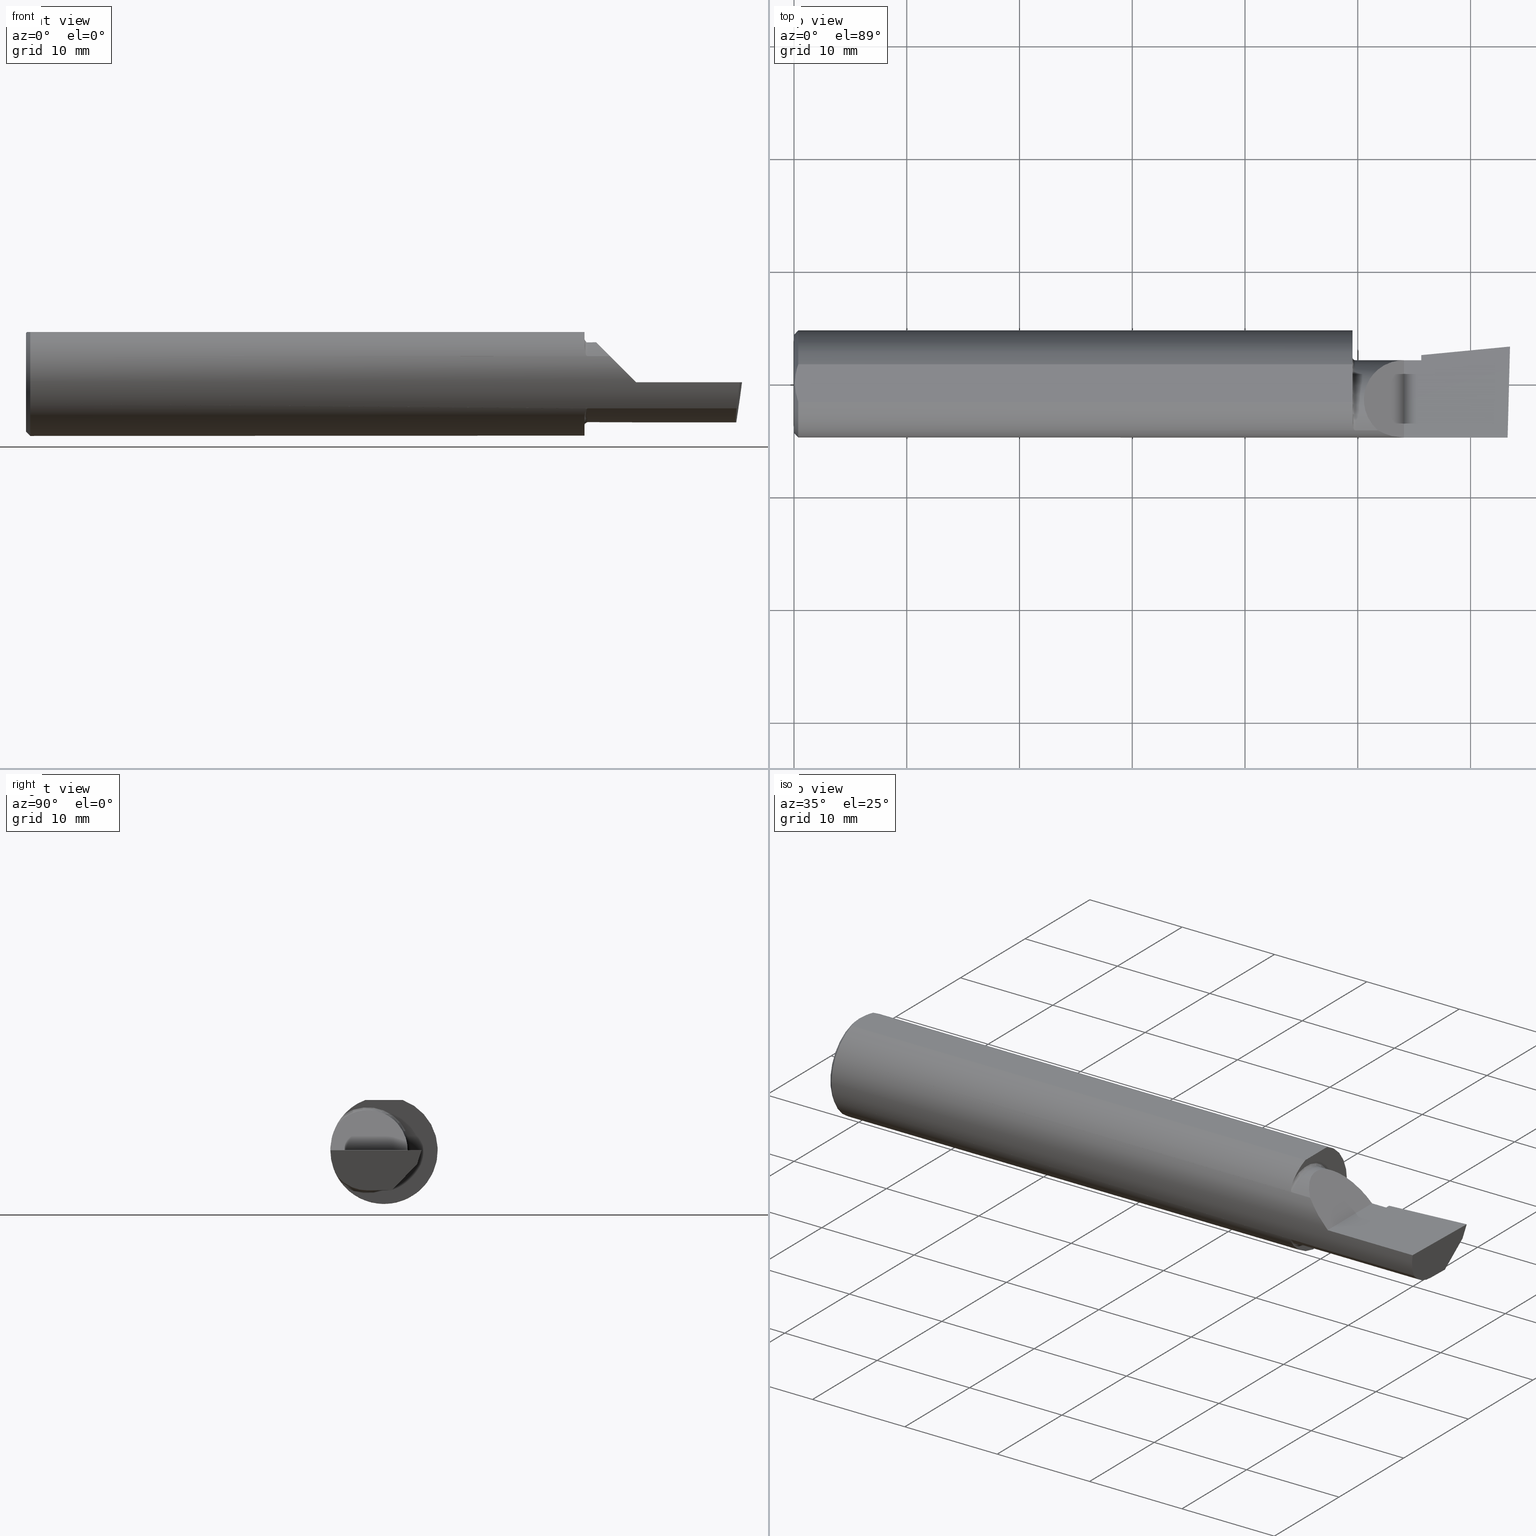
[diagram: canonical four-view strip — front | top / right | iso, engineering-drawing reading convention]
A machine part, canonical four-view strip (front | top / right | iso — engineering-drawing reading convention). The complete STEP part file that produces these views, byte-faithful:
ISO-10303-21;
HEADER;
FILE_DESCRIPTION (( 'STEP AP214' ),
    '1' );
FILE_NAME ('B320500.STEP',
    '2020-05-07T19:08:26',
    ( '' ),
    ( '' ),
    'SwSTEP 2.0',
    'SolidWorks 2018',
    '' );
FILE_SCHEMA (( 'AUTOMOTIVE_DESIGN' ));
ENDSEC;

DATA;
#1 = DIRECTION ( 'NONE',  ( -1.000000000000000000, 5.691349986800549142E-18, -0.0000000000000000000 ) ) ;
#2 = DIRECTION ( 'NONE',  ( 0.0000000000000000000, -1.000000000000000000, 2.664535259100375303E-15 ) ) ;
#3 = DIRECTION ( 'NONE',  ( -0.9953961983671800740, -0.09584575252021032554, -1.093478026937437971E-17 ) ) ;
#4 = EDGE_CURVE ( 'NONE', #303, #115, #137, .T. ) ;
#5 = CARTESIAN_POINT ( 'NONE',  ( 0.01125230581755086272, 0.05532998191409922023, 0.1753500000000000059 ) ) ;
#6 = CARTESIAN_POINT ( 'NONE',  ( 2.500000000000000000, -0.05739999999999999963, -0.1400500000000000633 ) ) ;
#7 = FACE_OUTER_BOUND ( 'NONE', #404, .T. ) ;
#8 = DIRECTION ( 'NONE',  ( -1.000000000000000000, -6.829619984160658046E-18, 0.0000000000000000000 ) ) ;
#9 = FACE_OUTER_BOUND ( 'NONE', #528, .T. ) ;
#10 = ORIENTED_EDGE ( 'NONE', *, *, #477, .T. ) ;
#11 = CARTESIAN_POINT ( 'NONE',  ( 2.481080296960508580, -0.1635956445993030084, -0.09130436773856176469 ) ) ;
#12 = AXIS2_PLACEMENT_3D ( 'NONE', #264, #458, #307 ) ;
#13 = EDGE_CURVE ( 'NONE', #325, #539, #565, .T. ) ;
#14 = CARTESIAN_POINT ( 'NONE',  ( 1.949999999999999956, 0.2373500000000000332, 0.1753499999999999504 ) ) ;
#15 = CONICAL_SURFACE ( 'NONE', #331, 0.1873499999999999888, 0.7853981633974602694 ) ;
#16 = PLANE ( 'NONE',  #323 ) ;
#17 = CARTESIAN_POINT ( 'NONE',  ( 1.975085956200449022, 0.08265000000000000124, 0.1549140437995494002 ) ) ;
#18 = DIRECTION ( 'NONE',  ( 0.7071067811865390240, 0.0000000000000000000, -0.7071067811865560104 ) ) ;
#19 = DIRECTION ( 'NONE',  ( -1.000000000000000000, -0.0000000000000000000, -0.0000000000000000000 ) ) ;
#20 = ORIENTED_EDGE ( 'NONE', *, *, #317, .F. ) ;
#21 = EDGE_CURVE ( 'NONE', #303, #140, #380, .T. ) ;
#22 = CARTESIAN_POINT ( 'NONE',  ( 0.0000000000000000000, 0.0000000000000000000, 0.0000000000000000000 ) ) ;
#23 = AXIS2_PLACEMENT_3D ( 'NONE', #556, #562, #572 ) ;
#24 = ORIENTED_EDGE ( 'NONE', *, *, #245, .F. ) ;
#25 = FILL_AREA_STYLE_COLOUR ( '', #281 ) ;
#26 = ADVANCED_FACE ( 'NONE', ( #570 ), #298, .T. ) ;
#27 = CARTESIAN_POINT ( 'NONE',  ( 2.189999999999999947, 0.1008003950587628567, 0.0000000000000000000 ) ) ;
#28 = UNCERTAINTY_MEASURE_WITH_UNIT (LENGTH_MEASURE( 1.000000000000000082E-05 ), #431, 'distance_accuracy_value', 'NONE');
#29 = CARTESIAN_POINT ( 'NONE',  ( 2.189999999999999947, 0.08544315931885967941, -0.04999999999999999584 ) ) ;
#30 = ORIENTED_EDGE ( 'NONE', *, *, #447, .T. ) ;
#31 = PLANE ( 'NONE',  #272 ) ;
#32 = CARTESIAN_POINT ( 'NONE',  ( 0.003000000000000169632, 0.01127363201155560934, 0.1753499999999999781 ) ) ;
#33 = VERTEX_POINT ( 'NONE', #111 ) ;
#34 = CARTESIAN_POINT ( 'NONE',  ( 2.500000000000000000, 0.2373500000000000332, 0.1753499999999999504 ) ) ;
#35 = CARTESIAN_POINT ( 'NONE',  ( 2.189999999999999947, 0.08265000000000004288, 3.267291166268305196E-16 ) ) ;
#36 = APPLICATION_PROTOCOL_DEFINITION ( 'draft international standard', 'automotive_design', 1998, #39 ) ;
#37 = CARTESIAN_POINT ( 'NONE',  ( 1.959999999999999964, -0.1635956445993024810, 0.09130436773856244470 ) ) ;
#38 = EDGE_CURVE ( 'NONE', #303, #509, #555, .T. ) ;
#39 = APPLICATION_CONTEXT ( 'automotive_design' ) ;
#40 = DIRECTION ( 'NONE',  ( 0.0000000000000000000, 0.0000000000000000000, 1.000000000000000000 ) ) ;
#41 = CARTESIAN_POINT ( 'NONE',  ( 0.0000000000000000000, 0.0000000000000000000, 0.0000000000000000000 ) ) ;
#42 = DIRECTION ( 'NONE',  ( -1.000000000000000000, -6.829619984160658046E-18, 0.0000000000000000000 ) ) ;
#43 = ORIENTED_EDGE ( 'NONE', *, *, #317, .T. ) ;
#44 = DIRECTION ( 'NONE',  ( 0.0000000000000000000, -1.000000000000000000, 0.0000000000000000000 ) ) ;
#45 = EDGE_CURVE ( 'NONE', #553, #256, #318, .T. ) ;
#46 = CARTESIAN_POINT ( 'NONE',  ( 0.0000000000000000000, 0.0000000000000000000, 0.0000000000000000000 ) ) ;
#47 = COLOUR_RGB ( '',0.7529411764705882248, 0.7529411764705882248, 0.7529411764705882248 ) ;
#48 = DIRECTION ( 'NONE',  ( 4.755568962650851256E-18, -0.6963153109074922131, -0.7177360153954950306 ) ) ;
#49 = VERTEX_POINT ( 'NONE', #541 ) ;
#50 = VERTEX_POINT ( 'NONE', #280 ) ;
#51 = DIRECTION ( 'NONE',  ( -1.000000000000000000, -0.0000000000000000000, -0.0000000000000000000 ) ) ;
#52 = PRODUCT_RELATED_PRODUCT_CATEGORY ( 'part', '', ( #376 ) ) ;
#53 = VECTOR ( 'NONE', #426, 39.37007874015748143 ) ;
#54 = CARTESIAN_POINT ( 'NONE',  ( 1.950535130224571256, -0.1482744458446704217, -0.1147666934430602859 ) ) ;
#55 = LINE ( 'NONE', #442, #74 ) ;
#56 = AXIS2_PLACEMENT_3D ( 'NONE', #489, #488, #485 ) ;
#57 = EDGE_LOOP ( 'NONE', ( #422, #322, #420, #30, #400, #157 ) ) ;
#58 = DIRECTION ( 'NONE',  ( 1.000000000000000000, 6.829619984160658046E-18, 0.0000000000000000000 ) ) ;
#59 = ORIENTED_EDGE ( 'NONE', *, *, #95, .T. ) ;
#60 = EDGE_CURVE ( 'NONE', #425, #140, #332, .T. ) ;
#61 = CARTESIAN_POINT ( 'NONE',  ( 0.01499999999999999424, 0.0000000000000000000, 0.0000000000000000000 ) ) ;
#62 = PRODUCT_CONTEXT ( 'NONE', #125, 'mechanical' ) ;
#63 = DIRECTION ( 'NONE',  ( 6.829619984160658046E-18, -1.000000000000000000, 0.0000000000000000000 ) ) ;
#64 = DIRECTION ( 'NONE',  ( 1.000000000000000000, 0.0000000000000000000, 0.0000000000000000000 ) ) ;
#65 = CIRCLE ( 'NONE', #551, 0.1500499999999999889 ) ;
#66 = PRODUCT_DEFINITION_FORMATION_WITH_SPECIFIED_SOURCE ( 'ANY', '', #376, .NOT_KNOWN. ) ;
#67 = CARTESIAN_POINT ( 'NONE',  ( 0.0000000000000000000, 0.0000000000000000000, 0.0000000000000000000 ) ) ;
#68 = ORIENTED_EDGE ( 'NONE', *, *, #156, .T. ) ;
#69 = EDGE_CURVE ( 'NONE', #425, #50, #242, .T. ) ;
#70 = FACE_OUTER_BOUND ( 'NONE', #495, .T. ) ;
#71 = ADVANCED_FACE ( 'NONE', ( #183 ), #261, .F. ) ;
#72 =( NAMED_UNIT ( * ) PLANE_ANGLE_UNIT ( ) SI_UNIT ( $, .RADIAN. ) );
#73 = DIRECTION ( 'NONE',  ( -0.06894566448119623936, 0.7160281025913036723, -0.6946583704589932573 ) ) ;
#74 = VECTOR ( 'NONE', #518, 39.37007874015748854 ) ;
#75 =( CONVERSION_BASED_UNIT ( 'INCH', #398 ) LENGTH_UNIT ( ) NAMED_UNIT ( #304 ) );
#76 = EDGE_LOOP ( 'NONE', ( #94, #467, #126, #43, #363, #153, #566, #253, #133, #430 ) ) ;
#77 = EDGE_CURVE ( 'NONE', #276, #395, #257, .T. ) ;
#78 = ORIENTED_EDGE ( 'NONE', *, *, #529, .T. ) ;
#79 = CARTESIAN_POINT ( 'NONE',  ( 2.129999999999999893, -0.2500000000000000555, 1.065442715258197396E-16 ) ) ;
#80 = EDGE_CURVE ( 'NONE', #81, #276, #235, .T. ) ;
#81 = VERTEX_POINT ( 'NONE', #251 ) ;
#82 = CARTESIAN_POINT ( 'NONE',  ( 0.004093196532652216939, -0.02240707710020816909, 0.1753499999999999504 ) ) ;
#83 = PLANE ( 'NONE',  #579 ) ;
#84 = CARTESIAN_POINT ( 'NONE',  ( 2.189999999999999947, -0.2500000000000000555, 1.003418815229743595E-16 ) ) ;
#85 = CARTESIAN_POINT ( 'NONE',  ( 2.189999999999999947, -0.05739999999999999963, 0.0000000000000000000 ) ) ;
#86 = CARTESIAN_POINT ( 'NONE',  ( 2.481080296960508580, -0.1635956445993030084, -0.09130436773856176469 ) ) ;
#87 = EDGE_LOOP ( 'NONE', ( #329, #68 ) ) ;
#88 = DIRECTION ( 'NONE',  ( -6.829619984160658046E-18, 1.000000000000000000, 0.0000000000000000000 ) ) ;
#89 = VECTOR ( 'NONE', #182, 39.37007874015748143 ) ;
#90 = DIRECTION ( 'NONE',  ( -1.000000000000000000, -0.0000000000000000000, -0.0000000000000000000 ) ) ;
#91 = ORIENTED_EDGE ( 'NONE', *, *, #134, .T. ) ;
#92 = CLOSED_SHELL ( 'NONE', ( #397, #532, #443, #255, #581, #71, #301, #343, #210, #114, #346, #165, #295, #493, #26, #490, #118 ) ) ;
#93 = SURFACE_SIDE_STYLE ('',( #409 ) ) ;
#94 = ORIENTED_EDGE ( 'NONE', *, *, #429, .F. ) ;
#95 = EDGE_CURVE ( 'NONE', #453, #115, #483, .T. ) ;
#96 = VECTOR ( 'NONE', #18, 39.37007874015748143 ) ;
#97 = AXIS2_PLACEMENT_3D ( 'NONE', #67, #170, #127 ) ;
#98 = CARTESIAN_POINT ( 'NONE',  ( 2.066758987970638284, -0.1792580844883770730, 0.06324101202936138755 ) ) ;
#99 =( NAMED_UNIT ( * ) SI_UNIT ( $, .STERADIAN. ) SOLID_ANGLE_UNIT ( ) );
#100 = EDGE_LOOP ( 'NONE', ( #513, #103, #480, #274, #311 ) ) ;
#101 = ORIENTED_EDGE ( 'NONE', *, *, #123, .F. ) ;
#102 = CARTESIAN_POINT ( 'NONE',  ( 1.949999999999999956, 0.09264999999999999625, 0.0000000000000000000 ) ) ;
#103 = ORIENTED_EDGE ( 'NONE', *, *, #141, .F. ) ;
#104 = VECTOR ( 'NONE', #512, 39.37007874015748854 ) ;
#105 = EDGE_LOOP ( 'NONE', ( #227, #247, #411, #448 ) ) ;
#106 = CARTESIAN_POINT ( 'NONE',  ( 2.189999999999999947, -0.05739999999999999963, -0.1400500000000000633 ) ) ;
#107 = CARTESIAN_POINT ( 'NONE',  ( 0.01499999999999999424, 0.0000000000000000000, -0.1873499999999999888 ) ) ;
#108 = CYLINDRICAL_SURFACE ( 'NONE', #173, 0.1400500000000000078 ) ;
#109 = STYLED_ITEM ( 'NONE', ( #353 ), #239 ) ;
#110 = DIRECTION ( 'NONE',  ( 1.000000000000000000, 0.0000000000000000000, 0.0000000000000000000 ) ) ;
#111 = CARTESIAN_POINT ( 'NONE',  ( 2.038695632261437130, -0.1635956445993029529, 0.09130436773856191734 ) ) ;
#112 =( LENGTH_UNIT ( ) NAMED_UNIT ( * ) SI_UNIT ( $, .METRE. ) );
#113 = AXIS2_PLACEMENT_3D ( 'NONE', #418, #265, #476 ) ;
#114 = ADVANCED_FACE ( 'NONE', ( #228 ), #15, .T. ) ;
#115 = VERTEX_POINT ( 'NONE', #582 ) ;
#116 = SURFACE_STYLE_USAGE ( .BOTH. , #93 ) ;
#117 = CIRCLE ( 'NONE', #23, 0.1723499999999996424 ) ;
#118 = ADVANCED_FACE ( 'NONE', ( #166 ), #564, .F. ) ;
#119 = DIRECTION ( 'NONE',  ( 0.0000000000000000000, 0.0000000000000000000, 1.000000000000000000 ) ) ;
#120 = VECTOR ( 'NONE', #3, 39.37007874015748854 ) ;
#121 = FILL_AREA_STYLE ('',( #25 ) ) ;
#122 = EDGE_CURVE ( 'NONE', #437, #49, #365, .T. ) ;
#123 = EDGE_CURVE ( 'NONE', #461, #325, #534, .T. ) ;
#124 = FACE_OUTER_BOUND ( 'NONE', #76, .T. ) ;
#125 = APPLICATION_CONTEXT ( 'automotive_design' ) ;
#126 = ORIENTED_EDGE ( 'NONE', *, *, #470, .F. ) ;
#127 = DIRECTION ( 'NONE',  ( 0.0000000000000000000, 0.0000000000000000000, 1.000000000000000000 ) ) ;
#128 =( GEOMETRIC_REPRESENTATION_CONTEXT ( 3 ) GLOBAL_UNCERTAINTY_ASSIGNED_CONTEXT ( ( #220 ) ) GLOBAL_UNIT_ASSIGNED_CONTEXT ( ( #164, #163, #135 ) ) REPRESENTATION_CONTEXT ( 'NONE', 'WORKASPACE' ) );
#129 = DIRECTION ( 'NONE',  ( -0.09165774897393341725, 0.9519021185660614393, -0.2923717047227303856 ) ) ;
#130 = CARTESIAN_POINT ( 'NONE',  ( 0.008244775919947424855, 0.04453482769755855164, 0.1753499999999999504 ) ) ;
#131 = PRESENTATION_LAYER_ASSIGNMENT (  '', '', ( #109 ) ) ;
#132 = VERTEX_POINT ( 'NONE', #37 ) ;
#133 = ORIENTED_EDGE ( 'NONE', *, *, #38, .T. ) ;
#134 = EDGE_CURVE ( 'NONE', #374, #81, #221, .T. ) ;
#135 =( NAMED_UNIT ( * ) SI_UNIT ( $, .STERADIAN. ) SOLID_ANGLE_UNIT ( ) );
#136 = EDGE_CURVE ( 'NONE', #49, #33, #260, .T. ) ;
#137 = LINE ( 'NONE', #319, #586 ) ;
#138 = FACE_OUTER_BOUND ( 'NONE', #87, .T. ) ;
#139 = CARTESIAN_POINT ( 'NONE',  ( 2.477889026591898247, -0.05682100378451882677, -0.1400500000000000633 ) ) ;
#140 = VERTEX_POINT ( 'NONE', #208 ) ;
#141 = EDGE_CURVE ( 'NONE', #276, #233, #177, .T. ) ;
#142 = LENGTH_MEASURE_WITH_UNIT ( LENGTH_MEASURE( 0.02539999999999999897 ), #487 );
#143 = LINE ( 'NONE', #107, #96 ) ;
#144 = CARTESIAN_POINT ( 'NONE',  ( 0.003000000000000218638, 2.334609556160449697E-17, 0.1753499999999999781 ) ) ;
#145 = ORIENTED_EDGE ( 'NONE', *, *, #537, .T. ) ;
#146 = DIRECTION ( 'NONE',  ( 1.000000000000000000, 0.0000000000000000000, 0.0000000000000000000 ) ) ;
#147 = CARTESIAN_POINT ( 'NONE',  ( 2.189999999999999947, 0.06670933817657884179, -0.06931012851386068874 ) ) ;
#148 = LINE ( 'NONE', #213, #348 ) ;
#149 = CARTESIAN_POINT ( 'NONE',  ( 0.0000000000000000000, 0.06597272163553663527, 0.1753499999999999781 ) ) ;
#150 = CARTESIAN_POINT ( 'NONE',  ( 0.0000000000000000000, 0.0000000000000000000, -0.1723499999999996424 ) ) ;
#151 = ORIENTED_EDGE ( 'NONE', *, *, #80, .T. ) ;
#152 = LINE ( 'NONE', #441, #511 ) ;
#153 = ORIENTED_EDGE ( 'NONE', *, *, #226, .T. ) ;
#154 = DIRECTION ( 'NONE',  ( -1.000000000000000000, -6.829619984160658046E-18, 0.0000000000000000000 ) ) ;
#155 = APPLICATION_PROTOCOL_DEFINITION ( 'draft international standard', 'automotive_design', 1998, #125 ) ;
#156 = EDGE_CURVE ( 'NONE', #374, #451, #344, .T. ) ;
#157 = ORIENTED_EDGE ( 'NONE', *, *, #529, .F. ) ;
#158 = CARTESIAN_POINT ( 'NONE',  ( 2.038695632261437130, -0.1635956445993029529, 0.09130436773856191734 ) ) ;
#159 = ORIENTED_EDGE ( 'NONE', *, *, #45, .F. ) ;
#160 =( LENGTH_UNIT ( ) NAMED_UNIT ( * ) SI_UNIT ( $, .METRE. ) );
#161 = SURFACE_STYLE_FILL_AREA ( #469 ) ;
#162 = ORIENTED_EDGE ( 'NONE', *, *, #69, .T. ) ;
#163 =( NAMED_UNIT ( * ) PLANE_ANGLE_UNIT ( ) SI_UNIT ( $, .RADIAN. ) );
#164 =( CONVERSION_BASED_UNIT ( 'INCH', #335 ) LENGTH_UNIT ( ) NAMED_UNIT ( #168 ) );
#165 = ADVANCED_FACE ( 'NONE', ( #275 ), #83, .T. ) ;
#166 = FACE_OUTER_BOUND ( 'NONE', #57, .T. ) ;
#167 = CARTESIAN_POINT ( 'NONE',  ( 2.480058035321255794, 0.02601009779168075853, -0.1400500000000000633 ) ) ;
#168 = DIMENSIONAL_EXPONENTS ( 1.000000000000000000, 0.0000000000000000000, 0.0000000000000000000, 0.0000000000000000000, 0.0000000000000000000, 0.0000000000000000000, 0.0000000000000000000 ) ;
#169 = CARTESIAN_POINT ( 'NONE',  ( 2.484117089522337452, -0.1792580844883771007, -0.06324101202936138755 ) ) ;
#170 = DIRECTION ( 'NONE',  ( -1.000000000000000000, -0.0000000000000000000, -0.0000000000000000000 ) ) ;
#171 = CARTESIAN_POINT ( 'NONE',  ( 0.003000000000000218638, 2.334609556160449697E-17, 0.1753499999999999781 ) ) ;
#172 = DIRECTION ( 'NONE',  ( 0.0000000000000000000, 1.000000000000000000, 8.537024980200821325E-17 ) ) ;
#173 = AXIS2_PLACEMENT_3D ( 'NONE', #389, #415, #445 ) ;
#174 = LINE ( 'NONE', #494, #190 ) ;
#175 = AXIS2_PLACEMENT_3D ( 'NONE', #22, #40, #64 ) ;
#176 = CARTESIAN_POINT ( 'NONE',  ( 0.004115035183746292881, 0.02255629470626744487, 0.1753499999999999781 ) ) ;
#177 = LINE ( 'NONE', #149, #299 ) ;
#178 = ORIENTED_EDGE ( 'NONE', *, *, #351, .F. ) ;
#179 = CARTESIAN_POINT ( 'NONE',  ( 2.097861799102314961, -0.1873500000000000165, 0.03213820089768509858 ) ) ;
#180 = ORIENTED_EDGE ( 'NONE', *, *, #362, .T. ) ;
#181 = ORIENTED_EDGE ( 'NONE', *, *, #60, .F. ) ;
#182 = DIRECTION ( 'NONE',  ( 6.829619984160658046E-18, -1.000000000000000000, 1.438723400918613551E-16 ) ) ;
#183 = FACE_OUTER_BOUND ( 'NONE', #100, .T. ) ;
#184 = EDGE_CURVE ( 'NONE', #140, #303, #209, .T. ) ;
#185 = CARTESIAN_POINT ( 'NONE',  ( 2.511419111345318811, 0.1163922996227946677, -0.04999999999999999584 ) ) ;
#186 = CARTESIAN_POINT ( 'NONE',  ( 1.959999999999999964, -0.05739999999999999963, 0.0000000000000000000 ) ) ;
#187 = FACE_OUTER_BOUND ( 'NONE', #223, .T. ) ;
#188 = PRODUCT_DEFINITION ( 'UNKNOWN', '', #66, #292 ) ;
#189 = PRODUCT_DEFINITION_SHAPE ( 'NONE', 'NONE',  #188 ) ;
#190 = VECTOR ( 'NONE', #508, 39.37007874015748143 ) ;
#191 = CARTESIAN_POINT ( 'NONE',  ( 0.003000000000000172667, -0.01126410975715121283, 0.1753500000000000059 ) ) ;
#192 = LINE ( 'NONE', #462, #370 ) ;
#193 = CARTESIAN_POINT ( 'NONE',  ( 2.129999999999999893, -0.1873499999999999888, 1.065442715258197396E-16 ) ) ;
#194 = ORIENTED_EDGE ( 'NONE', *, *, #402, .T. ) ;
#195 = ORIENTED_EDGE ( 'NONE', *, *, #134, .F. ) ;
#196 = CARTESIAN_POINT ( 'NONE',  ( 2.491859106488688358, 0.02714641170210411319, -0.1400500000000000633 ) ) ;
#197 = ORIENTED_EDGE ( 'NONE', *, *, #338, .F. ) ;
#198 = ORIENTED_EDGE ( 'NONE', *, *, #217, .F. ) ;
#199 = CARTESIAN_POINT ( 'NONE',  ( 2.129999999999999893, -0.2500000000000000555, 1.065442715258197396E-16 ) ) ;
#200 = DIRECTION ( 'NONE',  ( 0.0000000000000000000, 0.2936076258024060692, 0.9559260233253795702 ) ) ;
#201 = DIRECTION ( 'NONE',  ( 0.7071067811865390240, 8.659560562355036396E-17, 0.7071067811865560104 ) ) ;
#202 = CARTESIAN_POINT ( 'NONE',  ( 1.949999999999999956, -0.06597272163553659363, 0.1753499999999999781 ) ) ;
#203 = LINE ( 'NONE', #313, #575 ) ;
#204 = AXIS2_PLACEMENT_3D ( 'NONE', #590, #308, #503 ) ;
#205 = EDGE_CURVE ( 'NONE', #233, #553, #496, .T. ) ;
#206 = ORIENTED_EDGE ( 'NONE', *, *, #337, .T. ) ;
#207 = CARTESIAN_POINT ( 'NONE',  ( 2.481080296960508580, -0.1635956445993030084, -0.09130436773856176469 ) ) ;
#208 = CARTESIAN_POINT ( 'NONE',  ( 2.189999999999999947, 0.06026672169836863602, -0.07595093880103571948 ) ) ;
#209 = LINE ( 'NONE', #147, #367 ) ;
#210 = ADVANCED_FACE ( 'NONE', ( #138 ), #16, .F. ) ;
#211 = ORIENTED_EDGE ( 'NONE', *, *, #141, .T. ) ;
#212 = VECTOR ( 'NONE', #51, 39.37007874015748143 ) ;
#213 = CARTESIAN_POINT ( 'NONE',  ( 2.189999999999999947, 0.09745742888373043478, -0.01088401009027229437 ) ) ;
#214 = DIRECTION ( 'NONE',  ( 6.829619984160658046E-18, -1.000000000000000000, 0.0000000000000000000 ) ) ;
#215 = FACE_OUTER_BOUND ( 'NONE', #345, .T. ) ;
#216 = ORIENTED_EDGE ( 'NONE', *, *, #310, .T. ) ;
#217 = EDGE_CURVE ( 'NONE', #475, #499, #55, .T. ) ;
#218 = ORIENTED_EDGE ( 'NONE', *, *, #4, .T. ) ;
#219 = AXIS2_PLACEMENT_3D ( 'NONE', #497, #154, #355 ) ;
#220 = UNCERTAINTY_MEASURE_WITH_UNIT (LENGTH_MEASURE( 1.000000000000000082E-05 ), #164, 'distance_accuracy_value', 'NONE');
#221 = LINE ( 'NONE', #577, #444 ) ;
#222 = CARTESIAN_POINT ( 'NONE',  ( 3.377502344341257155E-32, -0.1873499999999999610, 3.267291166268304703E-16 ) ) ;
#223 = EDGE_LOOP ( 'NONE', ( #388, #194, #316, #262, #554, #263 ) ) ;
#224 = DIRECTION ( 'NONE',  ( -1.000000000000000000, -6.829619984160658046E-18, -0.0000000000000000000 ) ) ;
#225 = LINE ( 'NONE', #6, #459 ) ;
#226 = EDGE_CURVE ( 'NONE', #546, #425, #152, .T. ) ;
#227 = ORIENTED_EDGE ( 'NONE', *, *, #364, .T. ) ;
#228 = FACE_OUTER_BOUND ( 'NONE', #576, .T. ) ;
#229 = CARTESIAN_POINT ( 'NONE',  ( 0.01499999999999999424, 0.06597272163553663527, 0.1753499999999999781 ) ) ;
#230 = FACE_OUTER_BOUND ( 'NONE', #595, .T. ) ;
#231 = CARTESIAN_POINT ( 'NONE',  ( 1.956503643436638074, -0.1620795007490426487, -0.09397341491037392025 ) ) ;
#232 = ORIENTED_EDGE ( 'NONE', *, *, #13, .T. ) ;
#233 = VERTEX_POINT ( 'NONE', #463 ) ;
#234 = CARTESIAN_POINT ( 'NONE',  ( 0.01499999999999997863, -0.06597272163553657975, 0.1753499999999999781 ) ) ;
#235 = B_SPLINE_CURVE_WITH_KNOTS ( 'NONE', 3,
 ( #171, #32, #176, #130, #5, #229 ),
 .UNSPECIFIED., .F., .F.,
 ( 4, 2, 4 ),
 ( 0.003480013901590607410, 0.004330767971208083697, 0.005181522040825559984 ),
 .UNSPECIFIED. ) ;
#236 = ORIENTED_EDGE ( 'NONE', *, *, #592, .T. ) ;
#237 = AXIS2_PLACEMENT_3D ( 'NONE', #571, #522, #432 ) ;
#238 = VECTOR ( 'NONE', #288, 39.37007874015748143 ) ;
#239 = MANIFOLD_SOLID_BREP ( '688D6B7D-BAE4-475f-AFEE-2551413196B6-GAAFaceID8', #92 ) ;
#240 = CARTESIAN_POINT ( 'NONE',  ( 0.01128414053810044941, -0.05542038647445821781, 0.1753499999999999781 ) ) ;
#241 = UNCERTAINTY_MEASURE_WITH_UNIT (LENGTH_MEASURE( 1.000000000000000082E-05 ), #75, 'distance_accuracy_value', 'NONE');
#242 = LINE ( 'NONE', #84, #455 ) ;
#243 = CARTESIAN_POINT ( 'NONE',  ( 1.949999999999999956, -0.1383256097560975340, -0.1263568288047931809 ) ) ;
#244 = CARTESIAN_POINT ( 'NONE',  ( 2.487725449370724817, -0.1873500000000000443, -0.03213820089768506388 ) ) ;
#245 = EDGE_CURVE ( 'NONE', #453, #475, #192, .T. ) ;
#246 = LINE ( 'NONE', #139, #544 ) ;
#247 = ORIENTED_EDGE ( 'NONE', *, *, #205, .T. ) ;
#248 = CARTESIAN_POINT ( 'NONE',  ( 2.491672876940991710, -0.1873499999999999888, 6.915950918908297591E-17 ) ) ;
#249 = CARTESIAN_POINT ( 'NONE',  ( 2.129999999999999893, 0.08264999999999990410, 1.065442715258197396E-16 ) ) ;
#250 = ORIENTED_EDGE ( 'NONE', *, *, #4, .F. ) ;
#251 = CARTESIAN_POINT ( 'NONE',  ( 0.003000000000000218638, 2.334609556160449697E-17, 0.1753499999999999781 ) ) ;
#252 = DIRECTION ( 'NONE',  ( 2.005228508682076280E-18, -0.2936076258024060137, -0.9559260233253795702 ) ) ;
#253 = ORIENTED_EDGE ( 'NONE', *, *, #21, .F. ) ;
#254 = LINE ( 'NONE', #199, #238 ) ;
#255 = ADVANCED_FACE ( 'NONE', ( #230 ), #484, .F. ) ;
#256 = VERTEX_POINT ( 'NONE', #324 ) ;
#257 = CIRCLE ( 'NONE', #396, 0.1873499999999999888 ) ;
#258 = CARTESIAN_POINT ( 'NONE',  ( 2.189999999999999947, -0.05739999999999999963, -0.1400500000000000633 ) ) ;
#259 = AXIS2_PLACEMENT_3D ( 'NONE', #186, #224, #44 ) ;
#260 =( BOUNDED_CURVE ( )  B_SPLINE_CURVE ( 3, ( #193, #179, #98, #158 ),
 .UNSPECIFIED., .F., .T. ) 
 B_SPLINE_CURVE_WITH_KNOTS ( ( 4, 4 ),
 ( 4.712388980384689674, 5.221437360734125122 ),
 .UNSPECIFIED. ) 
 CURVE ( )  GEOMETRIC_REPRESENTATION_ITEM ( )  RATIONAL_B_SPLINE_CURVE ( ( 1.000000000000000000, 0.9785221379938656705, 0.9785221379938656705, 1.000000000000000000 ) ) 
 REPRESENTATION_ITEM ( '' )  );
#261 = PLANE ( 'NONE',  #440 ) ;
#262 = ORIENTED_EDGE ( 'NONE', *, *, #69, .F. ) ;
#263 = ORIENTED_EDGE ( 'NONE', *, *, #477, .F. ) ;
#264 = CARTESIAN_POINT ( 'NONE',  ( 2.189999999999999947, -0.05739999999999999963, 0.0000000000000000000 ) ) ;
#265 = DIRECTION ( 'NONE',  ( 1.000000000000000000, 0.0000000000000000000, 0.0000000000000000000 ) ) ;
#266 =( BOUNDED_CURVE ( )  B_SPLINE_CURVE ( 3, ( #11, #550, #536, #305 ),
 .UNSPECIFIED., .F., .T. ) 
 B_SPLINE_CURVE_WITH_KNOTS ( ( 4, 4 ),
 ( 5.632580117768155148, 6.493234751459282528 ),
 .UNSPECIFIED. ) 
 CURVE ( )  GEOMETRIC_REPRESENTATION_ITEM ( )  RATIONAL_B_SPLINE_CURVE ( ( 1.000000000000000000, 0.9392195014330944058, 0.9392195014330944058, 1.000000000000000000 ) ) 
 REPRESENTATION_ITEM ( '' )  );
#267 = ORIENTED_EDGE ( 'NONE', *, *, #217, .T. ) ;
#268 = CARTESIAN_POINT ( 'NONE',  ( 2.189999999999999947, 0.1008003950587628567, 0.0000000000000000000 ) ) ;
#269 = EDGE_CURVE ( 'NONE', #451, #395, #143, .T. ) ;
#270 = CYLINDRICAL_SURFACE ( 'NONE', #97, 0.1873499999999999888 ) ;
#271 = EDGE_CURVE ( 'NONE', #453, #283, #246, .T. ) ;
#272 = AXIS2_PLACEMENT_3D ( 'NONE', #27, #42, #63 ) ;
#273 = FACE_OUTER_BOUND ( 'NONE', #486, .T. ) ;
#274 = ORIENTED_EDGE ( 'NONE', *, *, #537, .F. ) ;
#275 = FACE_OUTER_BOUND ( 'NONE', #105, .T. ) ;
#276 = VERTEX_POINT ( 'NONE', #385 ) ;
#277 = ORIENTED_EDGE ( 'NONE', *, *, #184, .T. ) ;
#278 = ORIENTED_EDGE ( 'NONE', *, *, #419, .F. ) ;
#279 = EDGE_CURVE ( 'NONE', #256, #539, #65, .T. ) ;
#280 = CARTESIAN_POINT ( 'NONE',  ( 2.189999999999999947, 0.1008003950587674363, 3.265412054926814582E-16 ) ) ;
#281 = COLOUR_RGB ( '',0.7529411764705882248, 0.7529411764705882248, 0.7529411764705882248 ) ;
#282 = PRESENTATION_LAYER_ASSIGNMENT (  '', '', ( #326 ) ) ;
#283 = VERTEX_POINT ( 'NONE', #383 ) ;
#284 = B_SPLINE_CURVE_WITH_KNOTS ( 'NONE', 3,
 ( #482, #439, #567, #542, #549, #558, #557, #573, #491, #356, #574, #578 ),
 .UNSPECIFIED., .F., .F.,
 ( 4, 2, 2, 2, 2, 4 ),
 ( 0.0009392928737449158204, 0.001524303482983965612, 0.001816808787603488989, 0.001963061439913247642, 0.002036187766068127403, 0.002109314092223006729 ),
 .UNSPECIFIED. ) ;
#285 = ORIENTED_EDGE ( 'NONE', *, *, #364, .F. ) ;
#286 = CARTESIAN_POINT ( 'NONE',  ( 0.008227791779583789808, -0.04447712204611815878, 0.1753499999999999781 ) ) ;
#287 = CARTESIAN_POINT ( 'NONE',  ( 1.953013987655236372, -0.1568958379530025204, -0.1024560150687160859 ) ) ;
#288 = DIRECTION ( 'NONE',  ( -0.0000000000000000000, 1.000000000000000000, -0.0000000000000000000 ) ) ;
#289 = CARTESIAN_POINT ( 'NONE',  ( 2.509953961983673043, 0.1316084575252021716, -6.829619984160658046E-17 ) ) ;
#290 = CIRCLE ( 'NONE', #465, 0.1873499999999999888 ) ;
#291 = VERTEX_POINT ( 'NONE', #352 ) ;
#292 = PRODUCT_DEFINITION_CONTEXT ( 'detailed design', #39, 'design' ) ;
#293 = DIRECTION ( 'NONE',  ( 0.0000000000000000000, 0.0000000000000000000, 1.000000000000000000 ) ) ;
#294 = EDGE_LOOP ( 'NONE', ( #552, #218, #387 ) ) ;
#295 = ADVANCED_FACE ( 'NONE', ( #124 ), #108, .T. ) ;
#296 = DIRECTION ( 'NONE',  ( 0.0000000000000000000, 1.000000000000000000, -1.438723400918613551E-16 ) ) ;
#297 = VECTOR ( 'NONE', #501, 39.37007874015748854 ) ;
#298 = PLANE ( 'NONE',  #372 ) ;
#299 = VECTOR ( 'NONE', #146, 39.37007874015748143 ) ;
#300 =( GEOMETRIC_REPRESENTATION_CONTEXT ( 3 ) GLOBAL_UNCERTAINTY_ASSIGNED_CONTEXT ( ( #241 ) ) GLOBAL_UNIT_ASSIGNED_CONTEXT ( ( #75, #72, #99 ) ) REPRESENTATION_CONTEXT ( 'NONE', 'WORKASPACE' ) );
#301 = ADVANCED_FACE ( 'NONE', ( #187 ), #423, .F. ) ;
#302 = PLANE ( 'NONE',  #312 ) ;
#303 = VERTEX_POINT ( 'NONE', #456 ) ;
#304 = DIMENSIONAL_EXPONENTS ( 1.000000000000000000, 0.0000000000000000000, 0.0000000000000000000, 0.0000000000000000000, 0.0000000000000000000, 0.0000000000000000000, 0.0000000000000000000 ) ;
#305 = CARTESIAN_POINT ( 'NONE',  ( 2.477873865042410806, -0.05739999999999999963, -0.1400500000000000633 ) ) ;
#306 = ORIENTED_EDGE ( 'NONE', *, *, #560, .T. ) ;
#307 = DIRECTION ( 'NONE',  ( 0.0000000000000000000, -1.000000000000000000, 0.0000000000000000000 ) ) ;
#308 = DIRECTION ( 'NONE',  ( -1.000000000000000000, -6.829619984160658046E-18, -0.0000000000000000000 ) ) ;
#309 = CARTESIAN_POINT ( 'NONE',  ( 2.475850273311264615, -0.1244607267090816621, -0.1422282308645907711 ) ) ;
#310 = EDGE_CURVE ( 'NONE', #553, #474, #424, .T. ) ;
#311 = ORIENTED_EDGE ( 'NONE', *, *, #310, .F. ) ;
#312 = AXIS2_PLACEMENT_3D ( 'NONE', #268, #8, #214 ) ;
#313 = CARTESIAN_POINT ( 'NONE',  ( 2.490039159128059953, -0.2497391662021650194, 6.932588350567417155E-17 ) ) ;
#314 = EDGE_CURVE ( 'NONE', #395, #474, #436, .T. ) ;
#315 = EDGE_LOOP ( 'NONE', ( #360, #277 ) ) ;
#316 = ORIENTED_EDGE ( 'NONE', *, *, #362, .F. ) ;
#317 = EDGE_CURVE ( 'NONE', #132, #33, #174, .T. ) ;
#318 = CIRCLE ( 'NONE', #473, 0.1873499999999999888 ) ;
#319 = CARTESIAN_POINT ( 'NONE',  ( 2.189999999999999947, 0.06670933817657884179, -0.06931012851386068874 ) ) ;
#320 = PRESENTATION_STYLE_ASSIGNMENT (( #116 ) ) ;
#321 = CARTESIAN_POINT ( 'NONE',  ( 0.01499999999999997863, -0.06597272163553657975, 0.1753499999999999781 ) ) ;
#322 = ORIENTED_EDGE ( 'NONE', *, *, #271, .F. ) ;
#323 = AXIS2_PLACEMENT_3D ( 'NONE', #46, #524, #515 ) ;
#324 = CARTESIAN_POINT ( 'NONE',  ( 1.949999999999999956, -0.1383256097560975340, 0.1263568288047931809 ) ) ;
#325 = VERTEX_POINT ( 'NONE', #481 ) ;
#326 = STYLED_ITEM ( 'NONE', ( #320 ), #366 ) ;
#327 = EDGE_LOOP ( 'NONE', ( #101, #78, #525, #535, #20, #197, #159, #216, #341, #417, #211, #285, #500 ) ) ;
#328 = ORIENTED_EDGE ( 'NONE', *, *, #338, .T. ) ;
#329 = ORIENTED_EDGE ( 'NONE', *, *, #419, .T. ) ;
#330 = CARTESIAN_POINT ( 'NONE',  ( 0.0000000000000000000, 2.202527268266512578E-17, 0.1723499999999996424 ) ) ;
#331 = AXIS2_PLACEMENT_3D ( 'NONE', #587, #110, #340 ) ;
#332 = CIRCLE ( 'NONE', #204, 0.1400500000000000356 ) ;
#333 = DIRECTION ( 'NONE',  ( 0.0000000000000000000, 0.6963153109074922131, 0.7177360153954949196 ) ) ;
#334 =( NAMED_UNIT ( * ) PLANE_ANGLE_UNIT ( ) SI_UNIT ( $, .RADIAN. ) );
#335 = LENGTH_MEASURE_WITH_UNIT ( LENGTH_MEASURE( 0.02539999999999999897 ), #160 );
#336 = DIRECTION ( 'NONE',  ( 1.000000000000000000, 6.829619984160658046E-18, 0.0000000000000000000 ) ) ;
#337 = EDGE_CURVE ( 'NONE', #499, #140, #428, .T. ) ;
#338 = EDGE_CURVE ( 'NONE', #256, #132, #284, .T. ) ;
#339 = DIRECTION ( 'NONE',  ( -1.000000000000000000, -6.829619984160658046E-18, -0.0000000000000000000 ) ) ;
#340 = DIRECTION ( 'NONE',  ( 0.0000000000000000000, 0.0000000000000000000, -1.000000000000000000 ) ) ;
#341 = ORIENTED_EDGE ( 'NONE', *, *, #314, .F. ) ;
#342 = MECHANICAL_DESIGN_GEOMETRIC_PRESENTATION_REPRESENTATION (  '', ( #326 ), #300 ) ;
#343 = ADVANCED_FACE ( 'NONE', ( #70 ), #526, .F. ) ;
#344 = CIRCLE ( 'NONE', #433, 0.1723499999999996424 ) ;
#345 = EDGE_LOOP ( 'NONE', ( #538, #91, #151, #384, #502 ) ) ;
#346 = ADVANCED_FACE ( 'NONE', ( #273 ), #548, .F. ) ;
#347 =( BOUNDED_CURVE ( )  B_SPLINE_CURVE ( 3, ( #86, #169, #244, #248 ),
 .UNSPECIFIED., .F., .T. ) 
 B_SPLINE_CURVE_WITH_KNOTS ( ( 4, 4 ),
 ( 0.8516985021657650368, 1.360746882515200484 ),
 .UNSPECIFIED. ) 
 CURVE ( )  GEOMETRIC_REPRESENTATION_ITEM ( )  RATIONAL_B_SPLINE_CURVE ( ( 1.000000000000000000, 0.9785221379938656705, 0.9785221379938656705, 1.000000000000000000 ) ) 
 REPRESENTATION_ITEM ( '' )  );
#348 = VECTOR ( 'NONE', #252, 39.37007874015748854 ) ;
#349 = FACE_OUTER_BOUND ( 'NONE', #327, .T. ) ;
#350 = SHAPE_DEFINITION_REPRESENTATION ( #189, #366 ) ;
#351 = EDGE_CURVE ( 'NONE', #33, #546, #416, .T. ) ;
#352 = CARTESIAN_POINT ( 'NONE',  ( 2.499999999999978684, 0.1306500000000237194, 8.388960953200464909E-14 ) ) ;
#353 = PRESENTATION_STYLE_ASSIGNMENT (( #452 ) ) ;
#354 = DIRECTION ( 'NONE',  ( 1.000000000000000000, 6.829619984160658046E-18, 0.0000000000000000000 ) ) ;
#355 = DIRECTION ( 'NONE',  ( 6.829619984160658046E-18, -1.000000000000000000, 0.0000000000000000000 ) ) ;
#356 = CARTESIAN_POINT ( 'NONE',  ( 1.958216394543444983, -0.1632528125625385962, 0.09191892236924101289 ) ) ;
#357 = AXIS2_PLACEMENT_3D ( 'NONE', #85, #394, #2 ) ;
#358 = DIRECTION ( 'NONE',  ( 0.0000000000000000000, -1.000000000000000000, -8.537024980200821325E-17 ) ) ;
#359 = CARTESIAN_POINT ( 'NONE',  ( 1.955249642630817242, -0.1607705839484627752, -0.09620717711675645656 ) ) ;
#360 = ORIENTED_EDGE ( 'NONE', *, *, #21, .T. ) ;
#361 = CIRCLE ( 'NONE', #259, 0.1400500000000000356 ) ;
#362 = EDGE_CURVE ( 'NONE', #50, #291, #531, .T. ) ;
#363 = ORIENTED_EDGE ( 'NONE', *, *, #351, .T. ) ;
#364 = EDGE_CURVE ( 'NONE', #539, #233, #290, .T. ) ;
#365 = LINE ( 'NONE', #222, #212 ) ;
#366 = ADVANCED_BREP_SHAPE_REPRESENTATION ( 'B320500', ( #239, #175 ), #128 ) ;
#367 = VECTOR ( 'NONE', #48, 39.37007874015748854 ) ;
#368 = EDGE_CURVE ( 'NONE', #50, #499, #148, .T. ) ;
#369 = DIRECTION ( 'NONE',  ( -0.02617694830779365364, -0.9996573249755593693, -8.535148296544462419E-17 ) ) ;
#370 = VECTOR ( 'NONE', #421, 39.37007874015748143 ) ;
#371 = CARTESIAN_POINT ( 'NONE',  ( 0.01499999999999999424, 0.0000000000000000000, -0.1873499999999999888 ) ) ;
#372 = AXIS2_PLACEMENT_3D ( 'NONE', #185, #73, #333 ) ;
#373 = CARTESIAN_POINT ( 'NONE',  ( 1.949999999999999956, 0.0000000000000000000, 0.0000000000000000000 ) ) ;
#374 = VERTEX_POINT ( 'NONE', #330 ) ;
#375 = FACE_OUTER_BOUND ( 'NONE', #315, .T. ) ;
#376 = PRODUCT ( 'B320500', 'B320500', '', ( #62 ) ) ;
#377 = ORIENTED_EDGE ( 'NONE', *, *, #279, .F. ) ;
#378 = DIRECTION ( 'NONE',  ( 0.0000000000000000000, 1.000000000000000000, 0.0000000000000000000 ) ) ;
#379 = AXIS2_PLACEMENT_3D ( 'NONE', #390, #514, #506 ) ;
#380 = CIRCLE ( 'NONE', #357, 0.1400500000000000356 ) ;
#381 = DIRECTION ( 'NONE',  ( 0.02617694830779364323, 0.9996573249755593693, -2.665804247635780349E-18 ) ) ;
#382 = CARTESIAN_POINT ( 'NONE',  ( 1.949999999999999956, -0.1383256097560975340, -0.1263568288047931809 ) ) ;
#383 = CARTESIAN_POINT ( 'NONE',  ( 2.477873865042410806, -0.05739999999999999963, -0.1400500000000000633 ) ) ;
#384 = ORIENTED_EDGE ( 'NONE', *, *, #77, .T. ) ;
#385 = CARTESIAN_POINT ( 'NONE',  ( 0.01499999999999999424, 0.06597272163553663527, 0.1753499999999999781 ) ) ;
#386 = DIRECTION ( 'NONE',  ( 0.9953961983671787417, 0.09584575252022456415, -1.028972571603813720E-16 ) ) ;
#387 = ORIENTED_EDGE ( 'NONE', *, *, #560, .F. ) ;
#388 = ORIENTED_EDGE ( 'NONE', *, *, #122, .F. ) ;
#389 = CARTESIAN_POINT ( 'NONE',  ( 0.0000000000000000000, -0.05740000000000001351, 0.0000000000000000000 ) ) ;
#390 = CARTESIAN_POINT ( 'NONE',  ( 2.500000000000000000, -0.2500000000000000555, 6.829619984160658046E-17 ) ) ;
#391 = VECTOR ( 'NONE', #172, 39.37007874015748143 ) ;
#392 = CARTESIAN_POINT ( 'NONE',  ( 0.0000000000000000000, -0.06597272163553657975, 0.1753499999999999781 ) ) ;
#393 = CARTESIAN_POINT ( 'NONE',  ( 1.949999999999999956, -0.05739999999999999963, 0.0000000000000000000 ) ) ;
#394 = DIRECTION ( 'NONE',  ( 1.000000000000000000, 6.829619984160658046E-18, 0.0000000000000000000 ) ) ;
#395 = VERTEX_POINT ( 'NONE', #371 ) ;
#396 = AXIS2_PLACEMENT_3D ( 'NONE', #61, #19, #119 ) ;
#397 = ADVANCED_FACE ( 'NONE', ( #215 ), #585, .T. ) ;
#398 = LENGTH_MEASURE_WITH_UNIT ( LENGTH_MEASURE( 0.02539999999999999897 ), #112 );
#399 = LINE ( 'NONE', #510, #104 ) ;
#400 = ORIENTED_EDGE ( 'NONE', *, *, #402, .F. ) ;
#401 = PLANE ( 'NONE',  #219 ) ;
#402 = EDGE_CURVE ( 'NONE', #437, #291, #203, .T. ) ;
#403 = DIRECTION ( 'NONE',  ( -0.9922060308645608284, 0.02598182930461468559, 0.1218693434050591162 ) ) ;
#404 = EDGE_LOOP ( 'NONE', ( #162, #584, #206, #181 ) ) ;
#405 = DIRECTION ( 'NONE',  ( -1.000000000000000000, -6.829619984160658046E-18, -0.0000000000000000000 ) ) ;
#406 = ORIENTED_EDGE ( 'NONE', *, *, #136, .F. ) ;
#407 = DIRECTION ( 'NONE',  ( 0.0000000000000000000, -1.000000000000000000, 0.0000000000000000000 ) ) ;
#408 = CARTESIAN_POINT ( 'NONE',  ( 2.500000000000000000, -0.05739999999999999963, -0.1400500000000000633 ) ) ;
#409 = SURFACE_STYLE_FILL_AREA ( #121 ) ;
#410 = CARTESIAN_POINT ( 'NONE',  ( 1.921229036482944075, -0.06260079402492431389, 0.2087709635170538203 ) ) ;
#411 = ORIENTED_EDGE ( 'NONE', *, *, #45, .T. ) ;
#412 = AXIS2_PLACEMENT_3D ( 'NONE', #289, #129, #200 ) ;
#413 = DIRECTION ( 'NONE',  ( -4.858719700838190352E-34, -8.537024980200821325E-17, 1.000000000000000000 ) ) ;
#414 = LINE ( 'NONE', #106, #391 ) ;
#415 = DIRECTION ( 'NONE',  ( -1.000000000000000000, -6.829619984160658046E-18, -0.0000000000000000000 ) ) ;
#416 =( BOUNDED_CURVE ( )  B_SPLINE_CURVE ( 3, ( #466, #410, #17, #249 ),
 .UNSPECIFIED., .F., .T. ) 
 B_SPLINE_CURVE_WITH_KNOTS ( ( 4, 4 ),
 ( 5.422530673488458852, 7.853981633974482790 ),
 .UNSPECIFIED. ) 
 CURVE ( )  GEOMETRIC_REPRESENTATION_ITEM ( )  RATIONAL_B_SPLINE_CURVE ( ( 1.000000000000000000, 0.5651045289226863666, 0.5651045289226863666, 1.000000000000000000 ) ) 
 REPRESENTATION_ITEM ( '' )  );
#417 = ORIENTED_EDGE ( 'NONE', *, *, #77, .F. ) ;
#418 = CARTESIAN_POINT ( 'NONE',  ( 0.01499999999999999424, 0.0000000000000000000, 0.0000000000000000000 ) ) ;
#419 = EDGE_CURVE ( 'NONE', #451, #374, #117, .T. ) ;
#420 = ORIENTED_EDGE ( 'NONE', *, *, #245, .T. ) ;
#421 = DIRECTION ( 'NONE',  ( 0.1053106618240635395, 0.6976485211320198054, 0.7086580314005362924 ) ) ;
#422 = ORIENTED_EDGE ( 'NONE', *, *, #429, .T. ) ;
#423 = PLANE ( 'NONE',  #379 ) ;
#424 = LINE ( 'NONE', #392, #53 ) ;
#425 = VERTEX_POINT ( 'NONE', #35 ) ;
#426 = DIRECTION ( 'NONE',  ( -1.000000000000000000, -0.0000000000000000000, -0.0000000000000000000 ) ) ;
#427 = CARTESIAN_POINT ( 'NONE',  ( 0.5470260790800310913, -0.05740000000000000657, 2.701812985571357332E-16 ) ) ;
#428 = LINE ( 'NONE', #435, #297 ) ;
#429 = EDGE_CURVE ( 'NONE', #461, #283, #266, .T. ) ;
#430 = ORIENTED_EDGE ( 'NONE', *, *, #592, .F. ) ;
#431 =( CONVERSION_BASED_UNIT ( 'INCH', #142 ) LENGTH_UNIT ( ) NAMED_UNIT ( #450 ) );
#432 = DIRECTION ( 'NONE',  ( 6.829619984160658046E-18, -1.000000000000000000, 0.0000000000000000000 ) ) ;
#433 = AXIS2_PLACEMENT_3D ( 'NONE', #41, #90, #293 ) ;
#434 = CARTESIAN_POINT ( 'NONE',  ( 1.949999999999999512, -0.1434457138613161042, -0.1207517378170855082 ) ) ;
#435 = CARTESIAN_POINT ( 'NONE',  ( 2.189999999999999947, 0.06670933817657884179, -0.06931012851386068874 ) ) ;
#436 = CIRCLE ( 'NONE', #56, 0.1873499999999999888 ) ;
#437 = VERTEX_POINT ( 'NONE', #530 ) ;
#438 = ORIENTED_EDGE ( 'NONE', *, *, #447, .F. ) ;
#439 = CARTESIAN_POINT ( 'NONE',  ( 1.950000000000000178, -0.1434410963562314234, 0.1207567927018307896 ) ) ;
#440 = AXIS2_PLACEMENT_3D ( 'NONE', #34, #588, #296 ) ;
#441 = CARTESIAN_POINT ( 'NONE',  ( -9.564882787816664242E-19, 0.08264999999999998737, 3.267291166268304703E-16 ) ) ;
#442 = CARTESIAN_POINT ( 'NONE',  ( 2.511419111345318811, 0.1163922996227946677, -0.04999999999999999584 ) ) ;
#443 = ADVANCED_FACE ( 'NONE', ( #454 ), #401, .T. ) ;
#444 = VECTOR ( 'NONE', #201, 39.37007874015748143 ) ;
#445 = DIRECTION ( 'NONE',  ( 6.829619984160658816E-18, -1.000000000000000000, 0.0000000000000000000 ) ) ;
#446 = CARTESIAN_POINT ( 'NONE',  ( 1.954627300813618351, -0.1598199155693376394, -0.09778034674766689083 ) ) ;
#447 = EDGE_CURVE ( 'NONE', #475, #291, #399, .T. ) ;
#448 = ORIENTED_EDGE ( 'NONE', *, *, #279, .T. ) ;
#449 =( NAMED_UNIT ( * ) SI_UNIT ( $, .STERADIAN. ) SOLID_ANGLE_UNIT ( ) );
#450 = DIMENSIONAL_EXPONENTS ( 1.000000000000000000, 0.0000000000000000000, 0.0000000000000000000, 0.0000000000000000000, 0.0000000000000000000, 0.0000000000000000000, 0.0000000000000000000 ) ;
#451 = VERTEX_POINT ( 'NONE', #150 ) ;
#452 = SURFACE_STYLE_USAGE ( .BOTH. , #460 ) ;
#453 = VERTEX_POINT ( 'NONE', #167 ) ;
#454 = FACE_OUTER_BOUND ( 'NONE', #294, .T. ) ;
#455 = VECTOR ( 'NONE', #498, 39.37007874015748143 ) ;
#456 = CARTESIAN_POINT ( 'NONE',  ( 2.189999999999999947, 0.02208021110064889436, -0.1153121786430049839 ) ) ;
#457 = PLANE ( 'NONE',  #412 ) ;
#458 = DIRECTION ( 'NONE',  ( -1.000000000000000000, -6.829619984160658046E-18, -0.0000000000000000000 ) ) ;
#459 = VECTOR ( 'NONE', #1, 39.37007874015748143 ) ;
#460 = SURFACE_SIDE_STYLE ('',( #161 ) ) ;
#461 = VERTEX_POINT ( 'NONE', #207 ) ;
#462 = CARTESIAN_POINT ( 'NONE',  ( 2.493766568580444432, 0.1168246249203733628, -0.04780233936830585728 ) ) ;
#463 = CARTESIAN_POINT ( 'NONE',  ( 1.949999999999999956, 0.06597272163553663527, 0.1753499999999999781 ) ) ;
#464 = ORIENTED_EDGE ( 'NONE', *, *, #184, .F. ) ;
#465 = AXIS2_PLACEMENT_3D ( 'NONE', #373, #336, #378 ) ;
#466 = CARTESIAN_POINT ( 'NONE',  ( 2.038695632261437130, -0.1635956445993029529, 0.09130436773856191734 ) ) ;
#467 = ORIENTED_EDGE ( 'NONE', *, *, #123, .T. ) ;
#468 = ORIENTED_EDGE ( 'NONE', *, *, #470, .T. ) ;
#469 = FILL_AREA_STYLE ('',( #479 ) ) ;
#470 = EDGE_CURVE ( 'NONE', #132, #325, #361, .T. ) ;
#471 = DIRECTION ( 'NONE',  ( -0.7071067811865439090, 0.0000000000000000000, -0.7071067811865512365 ) ) ;
#472 = CARTESIAN_POINT ( 'NONE',  ( 1.952284340146846819, -0.1548226717605712954, -0.1055657780131314255 ) ) ;
#473 = AXIS2_PLACEMENT_3D ( 'NONE', #540, #354, #543 ) ;
#474 = VERTEX_POINT ( 'NONE', #321 ) ;
#475 = VERTEX_POINT ( 'NONE', #594 ) ;
#476 = DIRECTION ( 'NONE',  ( 0.0000000000000000000, 0.0000000000000000000, -1.000000000000000000 ) ) ;
#477 = EDGE_CURVE ( 'NONE', #49, #546, #254, .T. ) ;
#478 = AXIS2_PLACEMENT_3D ( 'NONE', #408, #413, #358 ) ;
#479 = FILL_AREA_STYLE_COLOUR ( '', #47 ) ;
#480 = ORIENTED_EDGE ( 'NONE', *, *, #80, .F. ) ;
#481 = CARTESIAN_POINT ( 'NONE',  ( 1.959999999999999964, -0.1635956445993023423, -0.09130436773856262511 ) ) ;
#482 = CARTESIAN_POINT ( 'NONE',  ( 1.949999999999999956, -0.1383256097560975340, 0.1263568288047931809 ) ) ;
#483 = LINE ( 'NONE', #196, #120 ) ;
#484 = PLANE ( 'NONE',  #478 ) ;
#485 = DIRECTION ( 'NONE',  ( 0.0000000000000000000, 0.0000000000000000000, 1.000000000000000000 ) ) ;
#486 = EDGE_LOOP ( 'NONE', ( #328, #468, #232, #377 ) ) ;
#487 =( LENGTH_UNIT ( ) NAMED_UNIT ( * ) SI_UNIT ( $, .METRE. ) );
#488 = DIRECTION ( 'NONE',  ( -1.000000000000000000, -0.0000000000000000000, -0.0000000000000000000 ) ) ;
#489 = CARTESIAN_POINT ( 'NONE',  ( 0.01499999999999999424, 0.0000000000000000000, 0.0000000000000000000 ) ) ;
#490 = ADVANCED_FACE ( 'NONE', ( #375 ), #31, .F. ) ;
#491 = CARTESIAN_POINT ( 'NONE',  ( 1.957002686248069834, -0.1625222757049321898, 0.09320450095779690691 ) ) ;
#492 =( GEOMETRIC_REPRESENTATION_CONTEXT ( 3 ) GLOBAL_UNCERTAINTY_ASSIGNED_CONTEXT ( ( #28 ) ) GLOBAL_UNIT_ASSIGNED_CONTEXT ( ( #431, #334, #449 ) ) REPRESENTATION_CONTEXT ( 'NONE', 'WORKASPACE' ) );
#493 = ADVANCED_FACE ( 'NONE', ( #9 ), #457, .T. ) ;
#494 = CARTESIAN_POINT ( 'NONE',  ( 2.075000000000000178, -0.1635956445993030084, 0.09130436773856176469 ) ) ;
#495 = EDGE_LOOP ( 'NONE', ( #178, #406, #10 ) ) ;
#496 = LINE ( 'NONE', #14, #89 ) ;
#497 = CARTESIAN_POINT ( 'NONE',  ( 2.189999999999999947, 0.1008003950587628567, 0.0000000000000000000 ) ) ;
#498 = DIRECTION ( 'NONE',  ( -6.829619984160658816E-18, 1.000000000000000000, 7.059994452165177242E-34 ) ) ;
#499 = VERTEX_POINT ( 'NONE', #29 ) ;
#500 = ORIENTED_EDGE ( 'NONE', *, *, #13, .F. ) ;
#501 = DIRECTION ( 'NONE',  ( 4.755568962650851256E-18, -0.6963153109074922131, -0.7177360153954950306 ) ) ;
#502 = ORIENTED_EDGE ( 'NONE', *, *, #269, .F. ) ;
#503 = DIRECTION ( 'NONE',  ( 0.0000000000000000000, -1.000000000000000000, 0.0000000000000000000 ) ) ;
#504 = AXIS2_PLACEMENT_3D ( 'NONE', #309, #403, #547 ) ;
#505 = EDGE_LOOP ( 'NONE', ( #24, #59, #250, #464, #545, #198 ) ) ;
#506 = DIRECTION ( 'NONE',  ( -1.000000000000000000, 0.0000000000000000000, 1.033731667140896077E-16 ) ) ;
#507 = VECTOR ( 'NONE', #386, 39.37007874015748143 ) ;
#508 = DIRECTION ( 'NONE',  ( 1.000000000000000000, 6.829619984160658046E-18, 0.0000000000000000000 ) ) ;
#509 = VERTEX_POINT ( 'NONE', #258 ) ;
#510 = CARTESIAN_POINT ( 'NONE',  ( 2.500188977433779769, 0.1311105994646662165, 0.001440373173041438817 ) ) ;
#511 = VECTOR ( 'NONE', #589, 39.37007874015748143 ) ;
#512 = DIRECTION ( 'NONE',  ( 0.1240019227988267692, 0.3022330132596590113, 0.9451342385281470415 ) ) ;
#513 = ORIENTED_EDGE ( 'NONE', *, *, #205, .F. ) ;
#514 = DIRECTION ( 'NONE',  ( -1.033731667140896077E-16, 0.0000000000000000000, -1.000000000000000000 ) ) ;
#515 = DIRECTION ( 'NONE',  ( 0.0000000000000000000, 0.0000000000000000000, -1.000000000000000000 ) ) ;
#516 = CARTESIAN_POINT ( 'NONE',  ( 1.958200855161537746, -0.1632467142437132035, -0.09192985110639269319 ) ) ;
#517 = DIRECTION ( 'NONE',  ( -0.7071067811865511255, 0.0000000000000000000, 0.7071067811865437980 ) ) ;
#518 = DIRECTION ( 'NONE',  ( -0.9953961983671800740, -0.09584575252021031166, 0.0000000000000000000 ) ) ;
#519 = CARTESIAN_POINT ( 'NONE',  ( 1.959999999999999964, -0.1635956445993023423, -0.09130436773856262511 ) ) ;
#520 = B_SPLINE_CURVE_WITH_KNOTS ( 'NONE', 3,
 ( #234, #240, #286, #82, #191, #144 ),
 .UNSPECIFIED., .F., .F.,
 ( 4, 2, 4 ),
 ( 0.001779942938356815062, 0.002629978419973711019, 0.003480013901590607410 ),
 .UNSPECIFIED. ) ;
#521 = MECHANICAL_DESIGN_GEOMETRIC_PRESENTATION_REPRESENTATION (  '', ( #109 ), #492 ) ;
#522 = DIRECTION ( 'NONE',  ( -1.000000000000000000, -6.829619984160658046E-18, -0.0000000000000000000 ) ) ;
#523 = ORIENTED_EDGE ( 'NONE', *, *, #95, .F. ) ;
#524 = DIRECTION ( 'NONE',  ( 1.000000000000000000, 0.0000000000000000000, 0.0000000000000000000 ) ) ;
#525 = ORIENTED_EDGE ( 'NONE', *, *, #122, .T. ) ;
#526 = PLANE ( 'NONE',  #561 ) ;
#527 = CARTESIAN_POINT ( 'NONE',  ( 2.075000000000000178, -0.1635956445993030084, -0.09130436773856176469 ) ) ;
#528 = EDGE_LOOP ( 'NONE', ( #438, #267, #591, #180 ) ) ;
#529 = EDGE_CURVE ( 'NONE', #461, #437, #347, .T. ) ;
#530 = CARTESIAN_POINT ( 'NONE',  ( 2.491672876940991710, -0.1873499999999999888, 6.915950918908297591E-17 ) ) ;
#531 = LINE ( 'NONE', #427, #507 ) ;
#532 = ADVANCED_FACE ( 'NONE', ( #7 ), #302, .T. ) ;
#533 = CARTESIAN_POINT ( 'NONE',  ( 1.959014641741961826, -0.1635956445993026198, -0.09130436773856263899 ) ) ;
#534 = LINE ( 'NONE', #527, #563 ) ;
#535 = ORIENTED_EDGE ( 'NONE', *, *, #136, .T. ) ;
#536 = CARTESIAN_POINT ( 'NONE',  ( 2.476787929832031221, -0.09887019258091186980, -0.1400500000000000356 ) ) ;
#537 = EDGE_CURVE ( 'NONE', #474, #81, #520, .T. ) ;
#538 = ORIENTED_EDGE ( 'NONE', *, *, #156, .F. ) ;
#539 = VERTEX_POINT ( 'NONE', #243 ) ;
#540 = CARTESIAN_POINT ( 'NONE',  ( 1.949999999999999956, 0.0000000000000000000, 0.0000000000000000000 ) ) ;
#541 = CARTESIAN_POINT ( 'NONE',  ( 2.129999999999999893, -0.1873499999999999888, 1.065442715258197396E-16 ) ) ;
#542 = CARTESIAN_POINT ( 'NONE',  ( 1.952291668372490685, -0.1548472237252441763, 0.1055305370847131191 ) ) ;
#543 = DIRECTION ( 'NONE',  ( 0.0000000000000000000, 1.000000000000000000, 0.0000000000000000000 ) ) ;
#544 = VECTOR ( 'NONE', #369, 39.37007874015748143 ) ;
#545 = ORIENTED_EDGE ( 'NONE', *, *, #337, .F. ) ;
#546 = VERTEX_POINT ( 'NONE', #583 ) ;
#547 = DIRECTION ( 'NONE',  ( 0.1219104985251942275, 0.0000000000000000000, 0.9925410975618785825 ) ) ;
#548 = TOROIDAL_SURFACE ( 'NONE', #237, 0.1500500000000000167, 0.009999999999999807654 ) ;
#549 = CARTESIAN_POINT ( 'NONE',  ( 1.953030094855348731, -0.1569359418858940203, 0.1023945457153810773 ) ) ;
#550 = CARTESIAN_POINT ( 'NONE',  ( 2.477925907309857401, -0.1365595166907235813, -0.1227499502647108609 ) ) ;
#551 = AXIS2_PLACEMENT_3D ( 'NONE', #393, #405, #407 ) ;
#552 = ORIENTED_EDGE ( 'NONE', *, *, #38, .F. ) ;
#553 = VERTEX_POINT ( 'NONE', #202 ) ;
#554 = ORIENTED_EDGE ( 'NONE', *, *, #226, .F. ) ;
#555 = CIRCLE ( 'NONE', #12, 0.1400500000000000356 ) ;
#556 = CARTESIAN_POINT ( 'NONE',  ( 0.0000000000000000000, 0.0000000000000000000, 0.0000000000000000000 ) ) ;
#557 = CARTESIAN_POINT ( 'NONE',  ( 1.955270962286581149, -0.1607994114084979054, 0.09615890281982712728 ) ) ;
#558 = CARTESIAN_POINT ( 'NONE',  ( 1.954651161669207049, -0.1598575446545088818, 0.09771880834312134112 ) ) ;
#559 = CARTESIAN_POINT ( 'NONE',  ( 1.956977885846546306, -0.1625039841807081609, -0.09323648621225627542 ) ) ;
#560 = EDGE_CURVE ( 'NONE', #509, #115, #414, .T. ) ;
#561 = AXIS2_PLACEMENT_3D ( 'NONE', #79, #471, #517 ) ;
#562 = DIRECTION ( 'NONE',  ( -1.000000000000000000, -0.0000000000000000000, -0.0000000000000000000 ) ) ;
#563 = VECTOR ( 'NONE', #339, 39.37007874015748143 ) ;
#564 = PLANE ( 'NONE',  #504 ) ;
#565 = B_SPLINE_CURVE_WITH_KNOTS ( 'NONE', 3,
 ( #519, #533, #516, #559, #231, #359, #446, #287, #472, #54, #434, #382 ),
 .UNSPECIFIED., .F., .F.,
 ( 4, 2, 2, 2, 2, 4 ),
 ( 1.968964099585697094E-07, 7.414172666648418124E-05, 0.0001480865569230097891, 0.0002959762174360506507, 0.0005917555384621323196, 0.001183314180514298368 ),
 .UNSPECIFIED. ) ;
#566 = ORIENTED_EDGE ( 'NONE', *, *, #60, .T. ) ;
#567 = CARTESIAN_POINT ( 'NONE',  ( 1.950530357231194944, -0.1482623167742067316, 0.1147852156680474883 ) ) ;
#568 = DIRECTION ( 'NONE',  ( 4.755568962650851256E-18, -0.6963153109074922131, -0.7177360153954950306 ) ) ;
#569 = ORIENTED_EDGE ( 'NONE', *, *, #271, .T. ) ;
#570 = FACE_OUTER_BOUND ( 'NONE', #505, .T. ) ;
#571 = CARTESIAN_POINT ( 'NONE',  ( 1.959999999999999964, -0.05739999999999999963, 0.0000000000000000000 ) ) ;
#572 = DIRECTION ( 'NONE',  ( 0.0000000000000000000, 0.0000000000000000000, 1.000000000000000000 ) ) ;
#573 = CARTESIAN_POINT ( 'NONE',  ( 1.956530533518343828, -0.1621041320318377665, 0.09393089788995236111 ) ) ;
#574 = CARTESIAN_POINT ( 'NONE',  ( 1.959029114488072709, -0.1635956446012893084, 0.09130436773500415215 ) ) ;
#575 = VECTOR ( 'NONE', #381, 39.37007874015748854 ) ;
#576 = EDGE_LOOP ( 'NONE', ( #195, #278, #593, #580, #145 ) ) ;
#577 = CARTESIAN_POINT ( 'NONE',  ( 0.01499999999999999424, 2.294375778202566330E-17, 0.1873499999999999888 ) ) ;
#578 = CARTESIAN_POINT ( 'NONE',  ( 1.959999999999999964, -0.1635956445993024810, 0.09130436773856244470 ) ) ;
#579 = AXIS2_PLACEMENT_3D ( 'NONE', #102, #58, #88 ) ;
#580 = ORIENTED_EDGE ( 'NONE', *, *, #314, .T. ) ;
#581 = ADVANCED_FACE ( 'NONE', ( #349 ), #270, .T. ) ;
#582 = CARTESIAN_POINT ( 'NONE',  ( 2.189999999999999947, -0.001919314351446939782, -0.1400500000000000633 ) ) ;
#583 = CARTESIAN_POINT ( 'NONE',  ( 2.129999999999999893, 0.08264999999999990410, 1.065442715258197396E-16 ) ) ;
#584 = ORIENTED_EDGE ( 'NONE', *, *, #368, .T. ) ;
#585 = CONICAL_SURFACE ( 'NONE', #113, 0.1873499999999999888, 0.7853981633974602694 ) ;
#586 = VECTOR ( 'NONE', #568, 39.37007874015748854 ) ;
#587 = CARTESIAN_POINT ( 'NONE',  ( 0.01499999999999999424, 0.0000000000000000000, 0.0000000000000000000 ) ) ;
#588 = DIRECTION ( 'NONE',  ( 0.0000000000000000000, -1.438723400918613551E-16, -1.000000000000000000 ) ) ;
#589 = DIRECTION ( 'NONE',  ( 1.000000000000000000, 6.829619984160658046E-18, 0.0000000000000000000 ) ) ;
#590 = CARTESIAN_POINT ( 'NONE',  ( 2.189999999999999947, -0.05739999999999999963, 0.0000000000000000000 ) ) ;
#591 = ORIENTED_EDGE ( 'NONE', *, *, #368, .F. ) ;
#592 = EDGE_CURVE ( 'NONE', #283, #509, #225, .T. ) ;
#593 = ORIENTED_EDGE ( 'NONE', *, *, #269, .T. ) ;
#594 = CARTESIAN_POINT ( 'NONE',  ( 2.493439983562941720, 0.1146611065212078395, -0.04999999999999999584 ) ) ;
#595 = EDGE_LOOP ( 'NONE', ( #523, #569, #236, #306 ) ) ;
ENDSEC;
END-ISO-10303-21;
